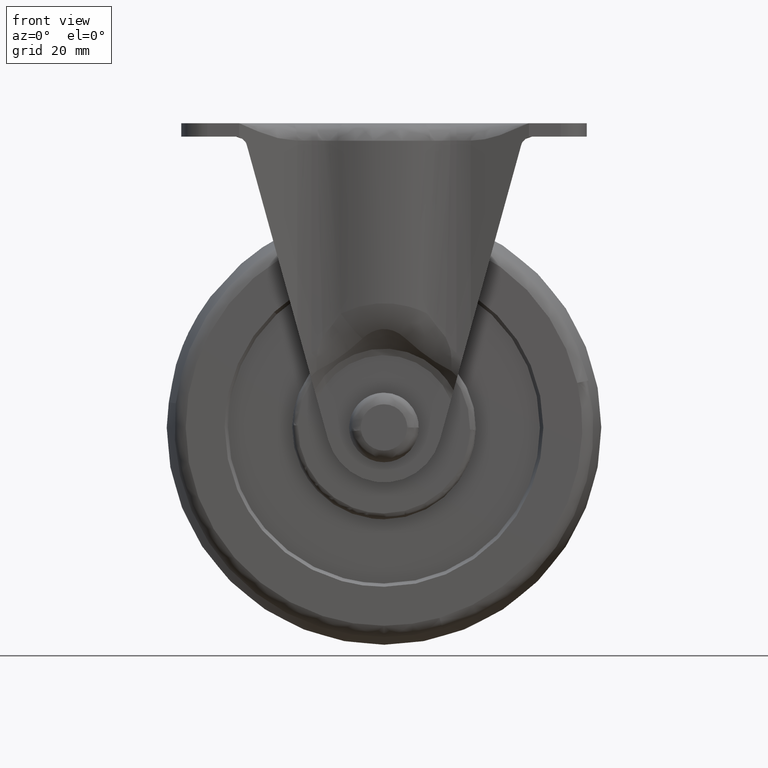
[diagram: clean part render]
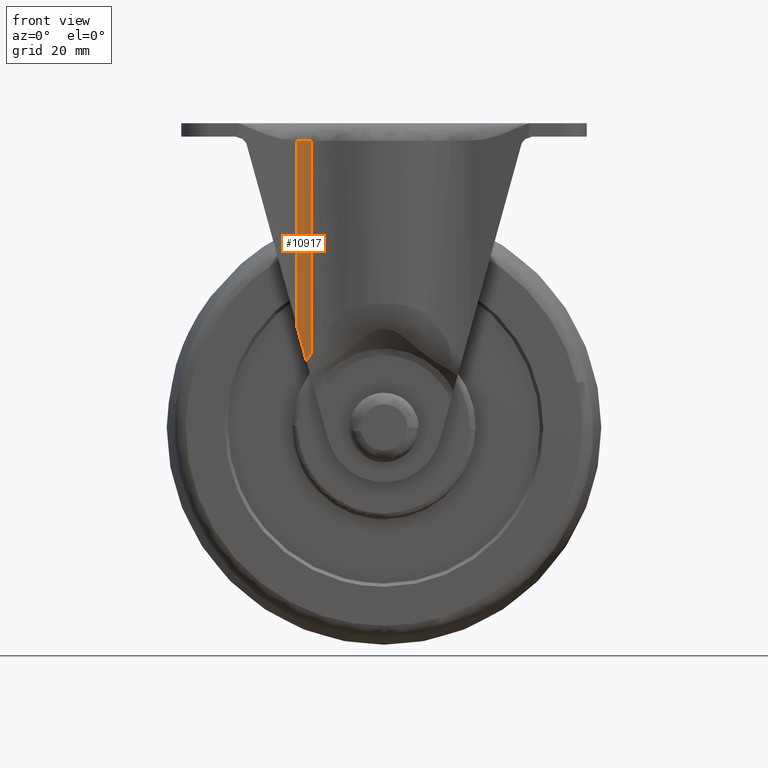
[diagram: same view with one face highlighted and labeled with its STEP entity id]
A machine part, front view. The second image highlights one B-rep face of the part: STEP entity #10917.
In plain terms, the highlighted face is a freeform B-spline surface patch.
Its self-contained STEP definition (entity closure, byte-faithful):
#5600=CARTESIAN_POINT('',(-12.500000000000000,-20.599997999999800,49.500000000000000));
#5601=VERTEX_POINT('',#5600);
#5658=CARTESIAN_POINT('',(-15.000430999999800,-20.917636999999850,49.500000000000000));
#5659=VERTEX_POINT('',#5658);
#5671=CARTESIAN_POINT('',(-12.500000000000000,-20.599997999999800,49.500000000000000));
#5672=CARTESIAN_POINT('',(-13.342429465529561,-20.599964073048909,49.499999999999950));
#5673=CARTESIAN_POINT('',(-14.184762579155040,-20.707019818570121,49.500000000000000));
#5674=CARTESIAN_POINT('',(-15.000430999999800,-20.917636999999850,49.500000000000000));
#5675=B_SPLINE_CURVE_WITH_KNOTS('',3,(#5671,#5672,#5673,#5674),.UNSPECIFIED.,.F.,.U.,(4,4),(2.861225E-009,2.527255115419609),.UNSPECIFIED.);
#5676=EDGE_CURVE('',#5601,#5659,#5675,.T.);
#10083=CARTESIAN_POINT('',(-12.499993346068830,-20.599997999999800,12.852419905849230));
#10084=VERTEX_POINT('',#10083);
#10142=CARTESIAN_POINT('',(-13.409757956593420,-20.641458849954301,11.509006836199701));
#10143=VERTEX_POINT('',#10142);
#10144=CARTESIAN_POINT('',(-13.409757956593420,-20.641458849954301,11.509006836199701));
#10145=CARTESIAN_POINT('',(-13.109309306040180,-20.613883352436542,11.958139098156201));
#10146=CARTESIAN_POINT('',(-12.805916878995721,-20.600057322737239,12.406146373501510));
#10147=CARTESIAN_POINT('',(-12.499993346068830,-20.599997999999800,12.852419905849230));
#10148=B_SPLINE_CURVE_WITH_KNOTS('',3,(#10144,#10145,#10146,#10147),.UNSPECIFIED.,.F.,.U.,(4,4),(9.539458E-011,1.623192879313378),.UNSPECIFIED.);
#10149=EDGE_CURVE('',#10143,#10084,#10148,.T.);
#10532=CARTESIAN_POINT('',(-12.499993346068830,-20.599997999999800,12.852419905849230));
#10533=CARTESIAN_POINT('',(-12.500000000000000,-20.599997999999800,49.500000000000000));
#10534=QUASI_UNIFORM_CURVE('',1,(#10532,#10533),.UNSPECIFIED.,.F.,.U.);
#10535=EDGE_CURVE('',#10084,#5601,#10534,.T.);
#10866=CARTESIAN_POINT('',(-15.000430999999800,-20.917636999999850,17.276321147806200));
#10867=VERTEX_POINT('',#10866);
#10868=CARTESIAN_POINT('',(-15.000430999999800,-20.917636999999850,17.276321147806200));
#10869=CARTESIAN_POINT('',(-15.000430999999800,-20.917636999999850,49.500000000000000));
#10870=QUASI_UNIFORM_CURVE('',1,(#10868,#10869),.UNSPECIFIED.,.F.,.U.);
#10871=EDGE_CURVE('',#10867,#5659,#10870,.T.);
#10884=CARTESIAN_POINT('',(-15.122007766789288,-20.949850656170106,10.559232007104693));
#10885=CARTESIAN_POINT('',(-15.122007766789288,-20.949850656170106,50.473519199822391));
#10886=CARTESIAN_POINT('',(-13.772448596996291,-20.583165543855081,10.559232007104697));
#10887=CARTESIAN_POINT('',(-13.772448596996291,-20.583165543855081,50.473519199822384));
#10888=CARTESIAN_POINT('',(-12.374071959235424,-20.600792322643827,10.559232007104695));
#10889=CARTESIAN_POINT('',(-12.374071959235424,-20.600792322643827,50.473519199822398));
#10897=(BOUNDED_SURFACE()B_SPLINE_SURFACE(1,2,((#10884,#10886,#10888),(#10885,#10887,#10889)),.UNSPECIFIED.,.F.,.F.,.U.)B_SPLINE_SURFACE_WITH_KNOTS((2,2),(3,3),(0.0,39.914287192717708),(0.0,2.783430560342408),.UNSPECIFIED.)GEOMETRIC_REPRESENTATION_ITEM()RATIONAL_B_SPLINE_SURFACE(((0.997860232925992,0.987618496528155,0.996600791034981),(0.997860232925992,0.987618496528155,0.996600791034981)))REPRESENTATION_ITEM('')SURFACE());
#10898=ORIENTED_EDGE('',*,*,#10535,.T.);
#10899=ORIENTED_EDGE('',*,*,#5676,.T.);
#10900=ORIENTED_EDGE('',*,*,#10871,.F.);
#10901=CARTESIAN_POINT('',(-13.409757956593420,-20.641458849954301,11.509006836199701));
#10902=CARTESIAN_POINT('',(-14.216278494129069,-20.715132573876797,14.433213955956397));
#10903=CARTESIAN_POINT('',(-15.000430999999800,-20.917636999999850,17.276321147806200));
#10911=(BOUNDED_CURVE()B_SPLINE_CURVE(2,(#10901,#10902,#10903),.UNSPECIFIED.,.F.,.U.)CURVE()GEOMETRIC_REPRESENTATION_ITEM()QUASI_UNIFORM_CURVE()RATIONAL_B_SPLINE_CURVE((1.0,0.996736251311960,1.0))REPRESENTATION_ITEM(''));
#10912=EDGE_CURVE('',#10143,#10867,#10911,.T.);
#10913=ORIENTED_EDGE('',*,*,#10912,.F.);
#10914=ORIENTED_EDGE('',*,*,#10149,.T.);
#10915=EDGE_LOOP('',(#10898,#10899,#10900,#10913,#10914));
#10916=FACE_OUTER_BOUND('',#10915,.T.);
#10917=ADVANCED_FACE('',(#10916),#10897,.F.);